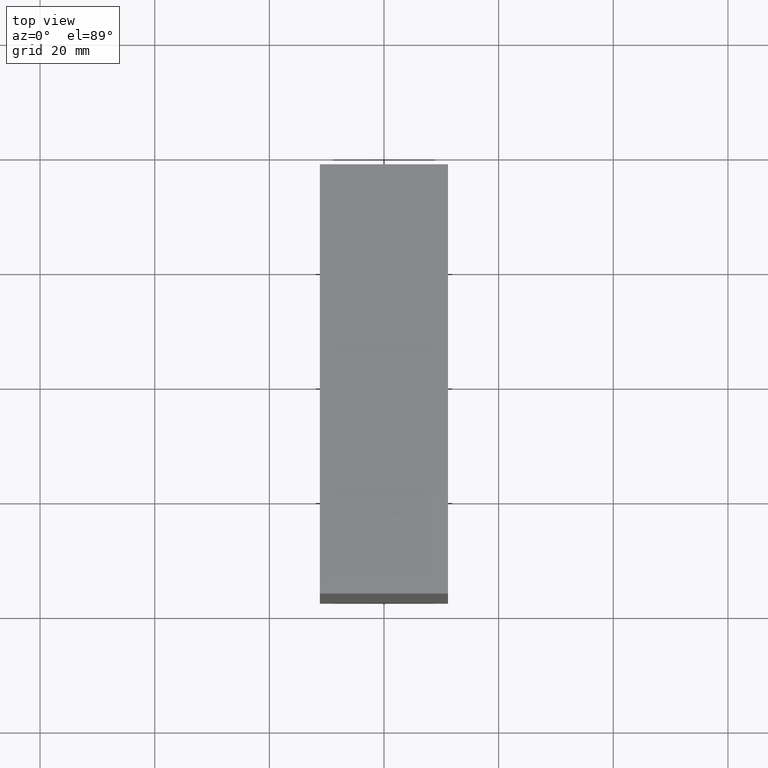
[diagram: clean part render]
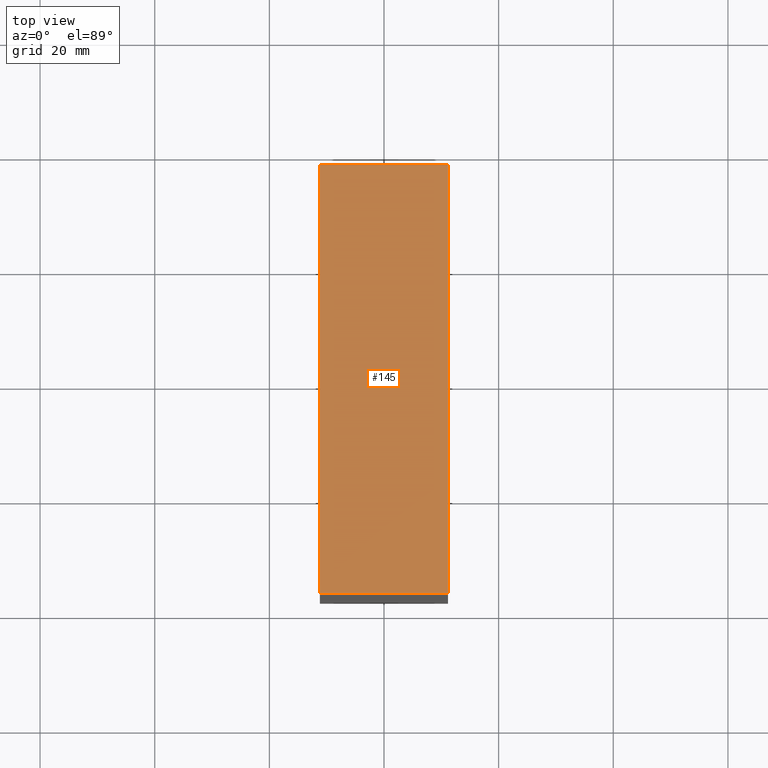
[diagram: same view with one face highlighted and labeled with its STEP entity id]
A machine part, top view. The second image highlights one B-rep face of the part: STEP entity #145.
In plain terms, the highlighted planar face has unit normal (0, 0, 1).
Its self-contained STEP definition (entity closure, byte-faithful):
#2=DIRECTION('',(0.E0,-1.E0,0.E0));
#3=VECTOR('',#2,2.95E0);
#4=CARTESIAN_POINT('',(-4.4E-1,1.475E0,0.E0));
#5=LINE('',#4,#3);
#6=DIRECTION('',(-1.E0,0.E0,0.E0));
#7=VECTOR('',#6,8.8E-1);
#8=CARTESIAN_POINT('',(4.4E-1,1.475E0,0.E0));
#9=LINE('',#8,#7);
#10=DIRECTION('',(0.E0,1.E0,0.E0));
#11=VECTOR('',#10,2.95E0);
#12=CARTESIAN_POINT('',(4.4E-1,-1.475E0,0.E0));
#13=LINE('',#12,#11);
#14=DIRECTION('',(1.E0,0.E0,0.E0));
#15=VECTOR('',#14,8.8E-1);
#16=CARTESIAN_POINT('',(-4.4E-1,-1.475E0,0.E0));
#17=LINE('',#16,#15);
#98=CARTESIAN_POINT('',(-4.4E-1,1.475E0,0.E0));
#99=CARTESIAN_POINT('',(-4.4E-1,-1.475E0,0.E0));
#100=VERTEX_POINT('',#98);
#101=VERTEX_POINT('',#99);
#102=CARTESIAN_POINT('',(4.4E-1,-1.475E0,0.E0));
#103=VERTEX_POINT('',#102);
#104=CARTESIAN_POINT('',(4.4E-1,1.475E0,0.E0));
#105=VERTEX_POINT('',#104);
#130=CARTESIAN_POINT('',(0.E0,0.E0,0.E0));
#131=DIRECTION('',(0.E0,0.E0,1.E0));
#132=DIRECTION('',(1.E0,0.E0,0.E0));
#133=AXIS2_PLACEMENT_3D('',#130,#131,#132);
#134=PLANE('',#133);
#136=ORIENTED_EDGE('',*,*,#135,.F.);
#138=ORIENTED_EDGE('',*,*,#137,.F.);
#140=ORIENTED_EDGE('',*,*,#139,.F.);
#142=ORIENTED_EDGE('',*,*,#141,.F.);
#143=EDGE_LOOP('',(#136,#138,#140,#142));
#144=FACE_OUTER_BOUND('',#143,.F.);
#145=ADVANCED_FACE('',(#144),#134,.T.);
#135=EDGE_CURVE('',#100,#101,#5,.T.);
#137=EDGE_CURVE('',#105,#100,#9,.T.);
#139=EDGE_CURVE('',#103,#105,#13,.T.);
#141=EDGE_CURVE('',#101,#103,#17,.T.);